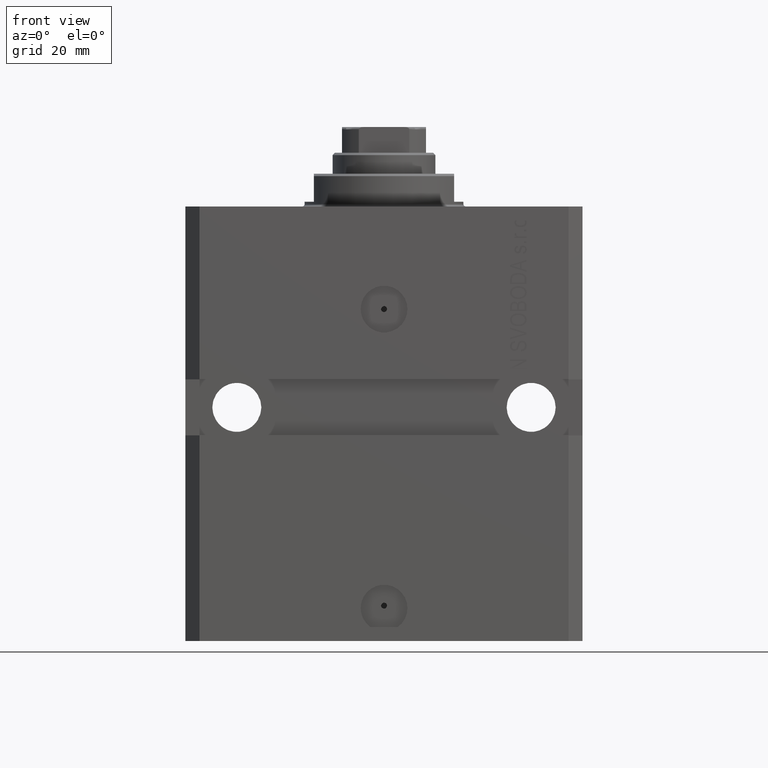
[diagram: clean part render]
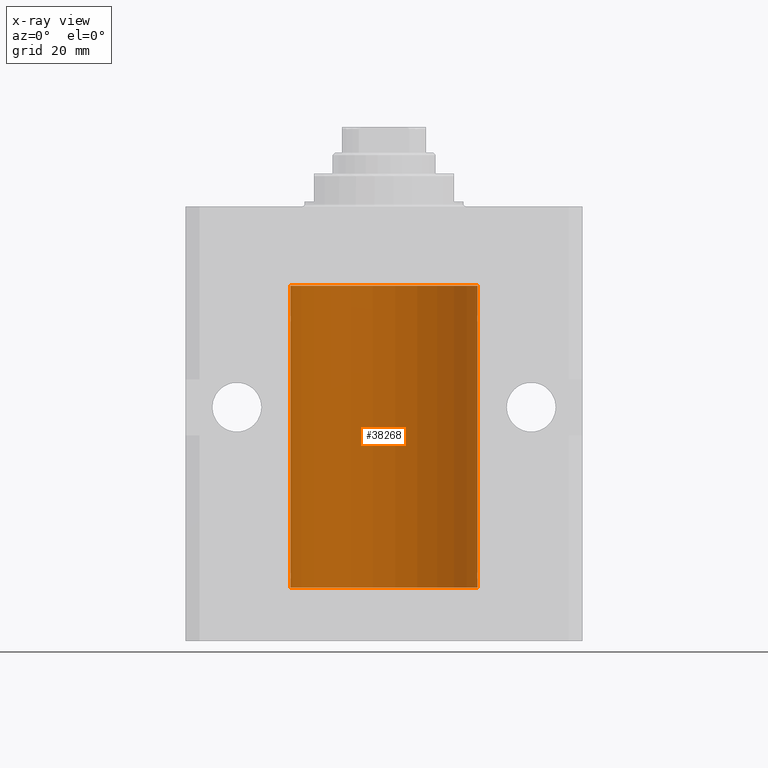
[diagram: x-ray — body ghosted, one internal face saturated and labeled with its STEP entity id]
A machine part, front view, then the same camera in x-ray: the body is ghosted and one INTERNAL B-rep face — a face not visible from any outside direction — is saturated and labeled: STEP entity #38268.
In plain terms, the highlighted cylindrical surface (partial cylindrical patch) has radius 20 mm, axis along (0, 0, 1).
Its self-contained STEP definition (entity closure, byte-faithful):
#687 = CARTESIAN_POINT ( 'NONE',  ( 19.99256353007439202, 0.5574106582031174151, -79.32639035180115172 ) ) ;
#1201 = CARTESIAN_POINT ( 'NONE',  ( -19.99023380173166231, 0.6249420416828462832, -23.83670793056396064 ) ) ;
#1482 = VERTEX_POINT ( 'NONE', #22594 ) ;
#1544 = CYLINDRICAL_SURFACE ( 'NONE', #1645, 20.00000000000000000 ) ;
#1645 = AXIS2_PLACEMENT_3D ( 'NONE', #12979, #45804, #31453 ) ;
#2390 = EDGE_CURVE ( 'NONE', #1482, #17855, #42843, .T. ) ;
#3245 = VERTEX_POINT ( 'NONE', #4111 ) ;
#3473 = CARTESIAN_POINT ( 'NONE',  ( 19.99023198964909298, 0.6250000000081508134, -23.99999999999910472 ) ) ;
#3712 = CARTESIAN_POINT ( 'NONE',  ( 19.99253733128256272, 0.5586305947778931191, -23.67476036735258305 ) ) ;
#3778 = DIRECTION ( 'NONE',  ( 1.000000000000000000, 0.000000000000000000, 0.000000000000000000 ) ) ;
#3815 = EDGE_CURVE ( 'NONE', #18842, #25822, #16572, .T. ) ;
#3998 = CARTESIAN_POINT ( 'NONE',  ( 19.99023198964909298, 0.6250000000081574747, -78.99999999999911893 ) ) ;
#4111 = CARTESIAN_POINT ( 'NONE',  ( -20.00000000000010303, 3.580159286679549072E-13, -79.62500000000332534 ) ) ;
#5002 = CARTESIAN_POINT ( 'NONE',  ( 19.99023198964909298, 0.6250000000081574747, -78.99999999999911893 ) ) ;
#5369 = VERTEX_POINT ( 'NONE', #9537 ) ;
#5932 = CARTESIAN_POINT ( 'NONE',  ( -19.99766197842594551, 0.3150331617867603295, -78.45402070102504410 ) ) ;
#6148 = CARTESIAN_POINT ( 'NONE',  ( 19.99999999999999645, 0.1631318418333158327, -78.37500000000015632 ) ) ;
#6200 = CARTESIAN_POINT ( 'NONE',  ( 19.99766100389832957, 0.3150982863324730543, -24.54594438241278453 ) ) ;
#6495 = CARTESIAN_POINT ( 'NONE',  ( -20.00000000000000000, 2.449293598294706513E-15, -81.59999999999999432 ) ) ;
#7421 = CARTESIAN_POINT ( 'NONE',  ( -20.00000000000000000, 2.449293598294706513E-15, -81.59999999999999432 ) ) ;
#7444 = EDGE_CURVE ( 'NONE', #9655, #3245, #29114, .T. ) ;
#7571 = LINE ( 'NONE', #44042, #44305 ) ;
#7792 = CARTESIAN_POINT ( 'NONE',  ( -20.00000000000000000, -2.867584836844214272E-15, -23.37500000000000000 ) ) ;
#8032 = CARTESIAN_POINT ( 'NONE',  ( -19.99638934703457593, 0.3843678041337688644, -23.50046362978100944 ) ) ;
#8098 = DIRECTION ( 'NONE',  ( 1.000000000000000000, 0.000000000000000000, 0.000000000000000000 ) ) ;
#8231 = CARTESIAN_POINT ( 'NONE',  ( 19.99638788807192924, 0.3844440352705359998, -79.49948058986481669 ) ) ;
#8304 = EDGE_LOOP ( 'NONE', ( #16125, #45870, #10622, #24806, #36189, #37372, #47149, #33771, #17380, #42703, #46378, #23508, #13384, #41475 ) ) ;
#8767 = CARTESIAN_POINT ( 'NONE',  ( -20.00000000000000000, 2.449293598294706513E-15, -81.59999999999999432 ) ) ;
#8814 = CARTESIAN_POINT ( 'NONE',  ( 20.00000000000000000, 0.000000000000000000, -81.59999999999999432 ) ) ;
#9108 = CARTESIAN_POINT ( 'NONE',  ( -19.99023380173166231, 0.6249420416828449509, -78.83670793056396064 ) ) ;
#9319 = B_SPLINE_CURVE_WITH_KNOTS ( 'NONE', 3,
 ( #3473, #18558, #3712, #44083, #29504, #15156 ),
 .UNSPECIFIED., .F., .F.,
 ( 4, 2, 4 ),
 ( 0.0009772989342736214998, 0.001465726722058845102, 0.001954154509844068920 ),
 .UNSPECIFIED. ) ;
#9537 = CARTESIAN_POINT ( 'NONE',  ( 20.00000000000010303, 3.555666352936568165E-13, -78.37499999999667466 ) ) ;
#9655 = VERTEX_POINT ( 'NONE', #7421 ) ;
#10330 = CARTESIAN_POINT ( 'NONE',  ( 19.99023198964933812, 0.6250000000002681189, -24.16311014829328130 ) ) ;
#10622 = ORIENTED_EDGE ( 'NONE', *, *, #37567, .T. ) ;
#10699 = CARTESIAN_POINT ( 'NONE',  ( 20.00000000000000000, 1.042771508482559297E-15, -24.62500000000000000 ) ) ;
#10894 = CARTESIAN_POINT ( 'NONE',  ( -20.00000000000000000, -1.124177324826063808E-14, -78.37500000000000000 ) ) ;
#11059 = CARTESIAN_POINT ( 'NONE',  ( 20.00000000000000000, 0.000000000000000000, -17.00000000000000000 ) ) ;
#11082 = CARTESIAN_POINT ( 'NONE',  ( 0.000000000000000000, 0.000000000000000000, -81.59999999999999432 ) ) ;
#11150 = CARTESIAN_POINT ( 'NONE',  ( 19.99023198964934167, 0.6250000000002757794, -79.16311014829327064 ) ) ;
#11393 = CARTESIAN_POINT ( 'NONE',  ( 19.99766100389833312, 0.3150982863324784944, -79.54594438241281296 ) ) ;
#11543 = CARTESIAN_POINT ( 'NONE',  ( 19.99769474220011034, 0.3253030616682413001, -78.44140633897630721 ) ) ;
#11822 = LINE ( 'NONE', #29925, #12123 ) ;
#12123 = VECTOR ( 'NONE', #36723, 1000.000000000000000 ) ;
#12283 = AXIS2_PLACEMENT_3D ( 'NONE', #29991, #16118, #8098 ) ;
#12538 = CARTESIAN_POINT ( 'NONE',  ( -19.99253506710754991, 0.5587120480776742726, -79.32511620830248944 ) ) ;
#12979 = CARTESIAN_POINT ( 'NONE',  ( 0.000000000000000000, 0.000000000000000000, -81.59999999999999432 ) ) ;
#13384 = ORIENTED_EDGE ( 'NONE', *, *, #23033, .F. ) ;
#14225 = VERTEX_POINT ( 'NONE', #11059 ) ;
#14472 = EDGE_CURVE ( 'NONE', #17855, #5369, #25082, .T. ) ;
#14606 = CARTESIAN_POINT ( 'NONE',  ( -20.00000000000010303, 3.580159286679549072E-13, -79.62500000000332534 ) ) ;
#15156 = CARTESIAN_POINT ( 'NONE',  ( 20.00000000000010303, 3.555666340528858977E-13, -23.37499999999667111 ) ) ;
#15422 = EDGE_CURVE ( 'NONE', #29772, #14225, #27057, .T. ) ;
#16046 = CARTESIAN_POINT ( 'NONE',  ( -19.99769349528941120, 0.3253804398728645242, -24.55855820727680339 ) ) ;
#16118 = DIRECTION ( 'NONE',  ( 0.000000000000000000, 0.000000000000000000, 1.000000000000000000 ) ) ;
#16125 = ORIENTED_EDGE ( 'NONE', *, *, #7444, .F. ) ;
#16223 = EDGE_CURVE ( 'NONE', #25822, #29772, #9319, .T. ) ;
#16572 = B_SPLINE_CURVE_WITH_KNOTS ( 'NONE', 3,
 ( #33158, #21273, #39988, #6200, #21743, #28340, #10330, #36574 ),
 .UNSPECIFIED., .F., .F.,
 ( 4, 2, 2, 4 ),
 ( 1.013370767385449693E-18, 0.0002443247335684061339, 0.0004886494671368111836, 0.0009772989342736214998 ),
 .UNSPECIFIED. ) ;
#17252 = DIRECTION ( 'NONE',  ( -0.000000000000000000, -0.000000000000000000, 1.000000000000000000 ) ) ;
#17380 = ORIENTED_EDGE ( 'NONE', *, *, #15422, .T. ) ;
#17684 = DIRECTION ( 'NONE',  ( -0.000000000000000000, -0.000000000000000000, 1.000000000000000000 ) ) ;
#17855 = VERTEX_POINT ( 'NONE', #5002 ) ;
#17892 = DIRECTION ( 'NONE',  ( 0.000000000000000000, 0.000000000000000000, 1.000000000000000000 ) ) ;
#18558 = CARTESIAN_POINT ( 'NONE',  ( 19.99023198964935588, 0.6249999999995746736, -23.83696384779806721 ) ) ;
#18761 = VERTEX_POINT ( 'NONE', #36960 ) ;
#18840 = CARTESIAN_POINT ( 'NONE',  ( 19.99023198964936299, 0.6249999999995806688, -78.83696384779808852 ) ) ;
#18842 = VERTEX_POINT ( 'NONE', #10699 ) ;
#18912 = B_SPLINE_CURVE_WITH_KNOTS ( 'NONE', 3,
 ( #7792, #26518, #19691, #34512, #8032, #23104, #1201, #22626, #37925, #16046, #30872, #20166 ),
 .UNSPECIFIED., .F., .F.,
 ( 4, 2, 2, 2, 2, 4 ),
 ( 5.848927291235706941E-19, 0.0002442693137305304075, 0.0004885386274610601645, 0.0009770772549221123059, 0.001465615882383164339, 0.001954154509844215938 ),
 .UNSPECIFIED. ) ;
#19691 = CARTESIAN_POINT ( 'NONE',  ( -19.99947377218718714, 0.1636439183262877461, -23.39126364004656011 ) ) ;
#19856 = EDGE_CURVE ( 'NONE', #5369, #18842, #11822, .T. ) ;
#20050 = CIRCLE ( 'NONE', #12283, 20.00000000000000000 ) ;
#20166 = CARTESIAN_POINT ( 'NONE',  ( -20.00000000000010303, 3.580159278407742946E-13, -24.62500000000332889 ) ) ;
#20460 = EDGE_CURVE ( 'NONE', #18761, #9655, #24584, .T. ) ;
#20712 = AXIS2_PLACEMENT_3D ( 'NONE', #11082, #17892, #3778 ) ;
#21017 = CARTESIAN_POINT ( 'NONE',  ( -19.99947377218718003, 0.1636439183262797525, -78.39126364004653169 ) ) ;
#21060 = CARTESIAN_POINT ( 'NONE',  ( 19.99023198964909298, 0.6250000000081508134, -23.99999999999910472 ) ) ;
#21273 = CARTESIAN_POINT ( 'NONE',  ( 19.99999999999999645, 0.08261455565447869964, -24.62499999999998579 ) ) ;
#21635 = VERTEX_POINT ( 'NONE', #36665 ) ;
#21726 = VERTEX_POINT ( 'NONE', #10894 ) ;
#21743 = CARTESIAN_POINT ( 'NONE',  ( 19.99638788807192924, 0.3844440352705356112, -24.49948058986480603 ) ) ;
#21982 = CARTESIAN_POINT ( 'NONE',  ( 20.00000000000010303, 3.555666340528858977E-13, -23.37499999999667111 ) ) ;
#22583 = CARTESIAN_POINT ( 'NONE',  ( 19.99999999999999645, 0.08261455565447825555, -79.62499999999997158 ) ) ;
#22594 = CARTESIAN_POINT ( 'NONE',  ( 20.00000000000000000, -4.058908006348821872E-15, -79.62500000000000000 ) ) ;
#22626 = CARTESIAN_POINT ( 'NONE',  ( -19.99023018003212471, 0.6250578794725500931, -24.16284809704970371 ) ) ;
#22817 = CARTESIAN_POINT ( 'NONE',  ( 20.00000000000000000, -4.058908006348821872E-15, -79.62500000000000000 ) ) ;
#23033 = EDGE_CURVE ( 'NONE', #21726, #21635, #26591, .T. ) ;
#23104 = CARTESIAN_POINT ( 'NONE',  ( -19.99256581701871482, 0.5573276956902001311, -23.67348565770948809 ) ) ;
#23131 = VERTEX_POINT ( 'NONE', #42858 ) ;
#23430 = CARTESIAN_POINT ( 'NONE',  ( -20.00000000000000000, 2.449293598294706513E-15, -81.59999999999999432 ) ) ;
#23508 = ORIENTED_EDGE ( 'NONE', *, *, #30884, .T. ) ;
#23950 = CARTESIAN_POINT ( 'NONE',  ( -19.99023018003212471, 0.6250578794725522025, -79.16284809704971792 ) ) ;
#24426 = CARTESIAN_POINT ( 'NONE',  ( -20.00000000000000000, -1.124177324826063808E-14, -78.37500000000000000 ) ) ;
#24584 = CIRCLE ( 'NONE', #20712, 20.00000000000000000 ) ;
#24806 = ORIENTED_EDGE ( 'NONE', *, *, #2390, .T. ) ;
#25082 = B_SPLINE_CURVE_WITH_KNOTS ( 'NONE', 3,
 ( #3998, #18840, #30021, #11543, #6148, #38996 ),
 .UNSPECIFIED., .F., .F.,
 ( 4, 2, 4 ),
 ( 0.0009772989342736221503, 0.001465726722058849005, 0.001954154509844075859 ),
 .UNSPECIFIED. ) ;
#25822 = VERTEX_POINT ( 'NONE', #21060 ) ;
#26518 = CARTESIAN_POINT ( 'NONE',  ( -19.99999999999999645, 0.08259581631026780002, -23.37500000000000000 ) ) ;
#26591 = LINE ( 'NONE', #23430, #41759 ) ;
#27057 = LINE ( 'NONE', #8814, #38394 ) ;
#27365 = EDGE_CURVE ( 'NONE', #14225, #46693, #20050, .T. ) ;
#27929 = EDGE_CURVE ( 'NONE', #23131, #46693, #32084, .T. ) ;
#28340 = CARTESIAN_POINT ( 'NONE',  ( 19.99256353007439202, 0.5574106582031151946, -24.32639035180115172 ) ) ;
#29114 = LINE ( 'NONE', #6495, #41757 ) ;
#29504 = CARTESIAN_POINT ( 'NONE',  ( 19.99999999999999645, 0.1631318418333146114, -23.37500000000016698 ) ) ;
#29772 = VERTEX_POINT ( 'NONE', #21982 ) ;
#29876 = CARTESIAN_POINT ( 'NONE',  ( 19.99947351343144319, 0.1636818329565372654, -79.60872855715646779 ) ) ;
#29925 = CARTESIAN_POINT ( 'NONE',  ( 20.00000000000000000, 0.000000000000000000, -81.59999999999999432 ) ) ;
#29928 = CARTESIAN_POINT ( 'NONE',  ( -19.99769349528941831, 0.3253804398728615266, -79.55855820727680339 ) ) ;
#29991 = CARTESIAN_POINT ( 'NONE',  ( 0.000000000000000000, 0.000000000000000000, -17.00000000000000000 ) ) ;
#30021 = CARTESIAN_POINT ( 'NONE',  ( 19.99253733128256627, 0.5586305947779004466, -78.67476036735259015 ) ) ;
#30463 = DIRECTION ( 'NONE',  ( -0.000000000000000000, -0.000000000000000000, 1.000000000000000000 ) ) ;
#30727 = FACE_OUTER_BOUND ( 'NONE', #8304, .T. ) ;
#30872 = CARTESIAN_POINT ( 'NONE',  ( -20.00000000000000000, 0.1631688615953320320, -24.62499999999985434 ) ) ;
#30884 = EDGE_CURVE ( 'NONE', #23131, #21635, #18912, .T. ) ;
#31244 = CARTESIAN_POINT ( 'NONE',  ( -19.99638934703457238, 0.3843678041337651452, -78.50046362978099523 ) ) ;
#31453 = DIRECTION ( 'NONE',  ( 1.000000000000000000, 0.000000000000000000, 0.000000000000000000 ) ) ;
#32084 = LINE ( 'NONE', #8767, #35563 ) ;
#32160 = EDGE_CURVE ( 'NONE', #21726, #3245, #32660, .T. ) ;
#32660 = B_SPLINE_CURVE_WITH_KNOTS ( 'NONE', 3,
 ( #24426, #39250, #21017, #5932, #31244, #35842, #9108, #23950, #12538, #29928, #36968, #14606 ),
 .UNSPECIFIED., .F., .F.,
 ( 4, 2, 2, 2, 2, 4 ),
 ( 1.522880481566060999E-18, 0.0002442693137305179392, 0.0004885386274610343605, 0.0009770772549220966934, 0.001465615882383158918, 0.001954154509844221576 ),
 .UNSPECIFIED. ) ;
#33158 = CARTESIAN_POINT ( 'NONE',  ( 20.00000000000000000, 1.042771508482559297E-15, -24.62500000000000000 ) ) ;
#33771 = ORIENTED_EDGE ( 'NONE', *, *, #16223, .T. ) ;
#34512 = CARTESIAN_POINT ( 'NONE',  ( -19.99766197842594906, 0.3150331617867667688, -23.45402070102505476 ) ) ;
#35563 = VECTOR ( 'NONE', #17252, 1000.000000000000000 ) ;
#35842 = CARTESIAN_POINT ( 'NONE',  ( -19.99256581701871838, 0.5573276956901996870, -78.67348565770949165 ) ) ;
#36189 = ORIENTED_EDGE ( 'NONE', *, *, #14472, .T. ) ;
#36574 = CARTESIAN_POINT ( 'NONE',  ( 19.99023198964909298, 0.6250000000081508134, -23.99999999999910472 ) ) ;
#36665 = CARTESIAN_POINT ( 'NONE',  ( -20.00000000000010303, 3.580159278407742946E-13, -24.62500000000332889 ) ) ;
#36723 = DIRECTION ( 'NONE',  ( -0.000000000000000000, -0.000000000000000000, 1.000000000000000000 ) ) ;
#36960 = CARTESIAN_POINT ( 'NONE',  ( 20.00000000000000000, 0.000000000000000000, -81.59999999999999432 ) ) ;
#36968 = CARTESIAN_POINT ( 'NONE',  ( -20.00000000000000355, 0.1631688615953343080, -79.62499999999984368 ) ) ;
#37237 = DIRECTION ( 'NONE',  ( -0.000000000000000000, -0.000000000000000000, 1.000000000000000000 ) ) ;
#37372 = ORIENTED_EDGE ( 'NONE', *, *, #19856, .T. ) ;
#37567 = EDGE_CURVE ( 'NONE', #18761, #1482, #7571, .T. ) ;
#37925 = CARTESIAN_POINT ( 'NONE',  ( -19.99253506710754991, 0.5587120480776751608, -24.32511620830248589 ) ) ;
#38268 = ADVANCED_FACE ( 'NONE', ( #30727 ), #1544, .F. ) ;
#38394 = VECTOR ( 'NONE', #30463, 1000.000000000000000 ) ;
#38996 = CARTESIAN_POINT ( 'NONE',  ( 20.00000000000010303, 3.555666352936568165E-13, -78.37499999999667466 ) ) ;
#39250 = CARTESIAN_POINT ( 'NONE',  ( -19.99999999999999289, 0.08259581631026131909, -78.37499999999998579 ) ) ;
#39988 = CARTESIAN_POINT ( 'NONE',  ( 19.99947351343144675, 0.1636818329565319363, -24.60872855715643936 ) ) ;
#41475 = ORIENTED_EDGE ( 'NONE', *, *, #32160, .T. ) ;
#41757 = VECTOR ( 'NONE', #17684, 1000.000000000000000 ) ;
#41759 = VECTOR ( 'NONE', #42147, 1000.000000000000000 ) ;
#42147 = DIRECTION ( 'NONE',  ( -0.000000000000000000, -0.000000000000000000, 1.000000000000000000 ) ) ;
#42703 = ORIENTED_EDGE ( 'NONE', *, *, #27365, .T. ) ;
#42843 = B_SPLINE_CURVE_WITH_KNOTS ( 'NONE', 3,
 ( #22817, #22583, #29876, #11393, #8231, #687, #11150, #45426 ),
 .UNSPECIFIED., .F., .F.,
 ( 4, 2, 2, 4 ),
 ( 3.944467879762244826E-18, 0.0002443247335684012008, 0.0004886494671367983900, 0.0009772989342736221503 ),
 .UNSPECIFIED. ) ;
#42858 = CARTESIAN_POINT ( 'NONE',  ( -20.00000000000000000, -2.867584836844214272E-15, -23.37500000000000000 ) ) ;
#44042 = CARTESIAN_POINT ( 'NONE',  ( 20.00000000000000000, 0.000000000000000000, -81.59999999999999432 ) ) ;
#44083 = CARTESIAN_POINT ( 'NONE',  ( 19.99769474220010679, 0.3253030616682399678, -23.44140633897632142 ) ) ;
#44305 = VECTOR ( 'NONE', #37237, 1000.000000000000000 ) ;
#44758 = CARTESIAN_POINT ( 'NONE',  ( -20.00000000000000000, 2.449293598294706513E-15, -17.00000000000000000 ) ) ;
#45426 = CARTESIAN_POINT ( 'NONE',  ( 19.99023198964909298, 0.6250000000081574747, -78.99999999999911893 ) ) ;
#45804 = DIRECTION ( 'NONE',  ( -0.000000000000000000, -0.000000000000000000, 1.000000000000000000 ) ) ;
#45870 = ORIENTED_EDGE ( 'NONE', *, *, #20460, .F. ) ;
#46378 = ORIENTED_EDGE ( 'NONE', *, *, #27929, .F. ) ;
#46693 = VERTEX_POINT ( 'NONE', #44758 ) ;
#47149 = ORIENTED_EDGE ( 'NONE', *, *, #3815, .T. ) ;